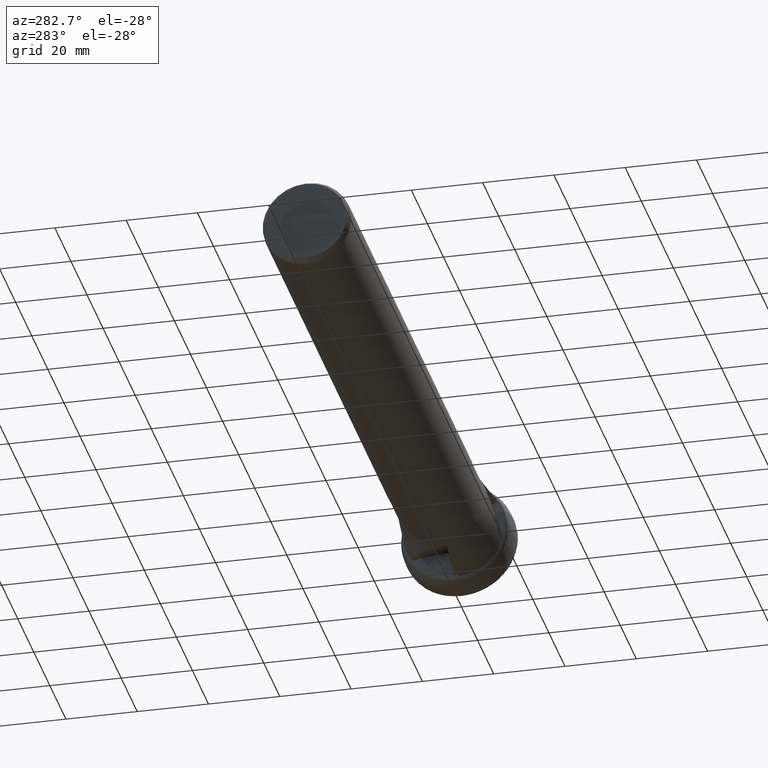
[diagram: clean part render]
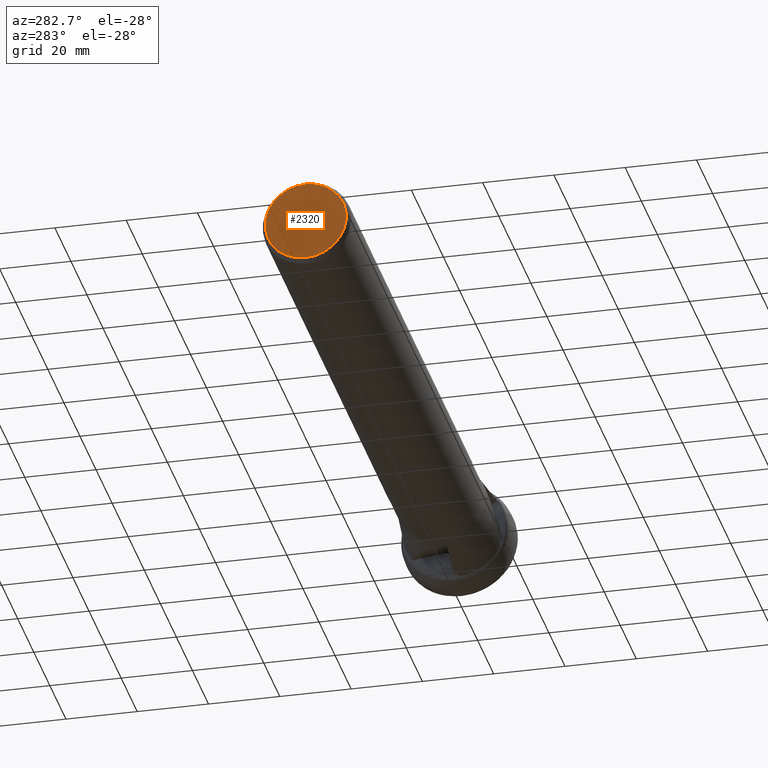
[diagram: same view with one face highlighted and labeled with its STEP entity id]
A machine part, auxiliary view. The second image highlights one B-rep face of the part: STEP entity #2320.
In plain terms, the highlighted planar face has unit normal (-1, 0, 0).
Its self-contained STEP definition (entity closure, byte-faithful):
#87 = AXIS2_PLACEMENT_3D ( 'NONE', #272, #3388, #1796 ) ;
#272 = CARTESIAN_POINT ( 'NONE',  ( -194.0500000000000100, 0.0000000000000000000, 0.0000000000000000000 ) ) ;
#443 = EDGE_LOOP ( 'NONE', ( #3504 ) ) ;
#468 = VERTEX_POINT ( 'NONE', #2712 ) ;
#565 = PLANE ( 'NONE',  #621 ) ;
#621 = AXIS2_PLACEMENT_3D ( 'NONE', #1538, #2838, #884 ) ;
#778 = EDGE_CURVE ( 'NONE', #468, #468, #819, .T. ) ;
#819 = CIRCLE ( 'NONE', #87, 11.39999999999997500 ) ;
#884 = DIRECTION ( 'NONE',  ( 0.0000000000000000000, 0.0000000000000000000, 1.000000000000000000 ) ) ;
#1538 = CARTESIAN_POINT ( 'NONE',  ( -194.0500000000000100, 11.39999999999997500, 0.0000000000000000000 ) ) ;
#1796 = DIRECTION ( 'NONE',  ( 0.0000000000000000000, 0.0000000000000000000, -1.000000000000000000 ) ) ;
#2320 = ADVANCED_FACE ( 'NONE', ( #2778 ), #565, .T. ) ;
#2712 = CARTESIAN_POINT ( 'NONE',  ( -194.0500000000000100, 0.0000000000000000000, -11.39999999999997500 ) ) ;
#2778 = FACE_OUTER_BOUND ( 'NONE', #443, .T. ) ;
#2838 = DIRECTION ( 'NONE',  ( -1.000000000000000000, 0.0000000000000000000, 0.0000000000000000000 ) ) ;
#3388 = DIRECTION ( 'NONE',  ( 1.000000000000000000, -0.0000000000000000000, -0.0000000000000000000 ) ) ;
#3504 = ORIENTED_EDGE ( 'NONE', *, *, #778, .F. ) ;